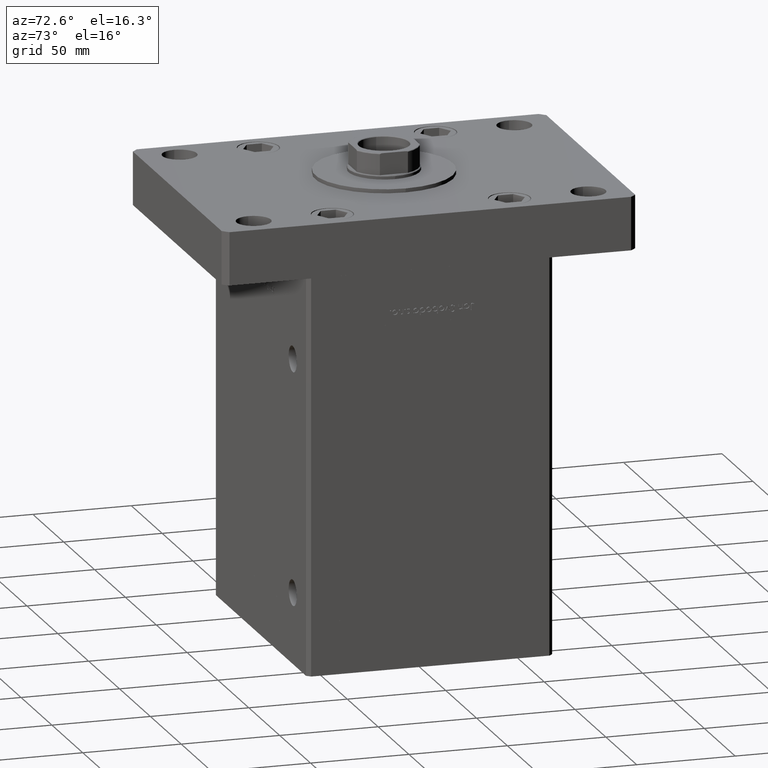
[diagram: clean part render]
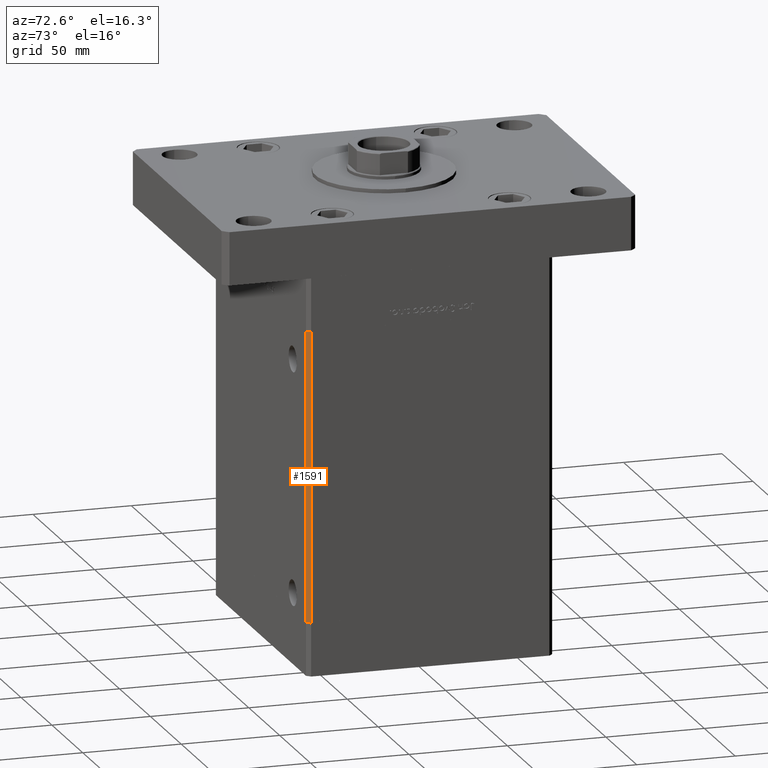
[diagram: same view with one face highlighted and labeled with its STEP entity id]
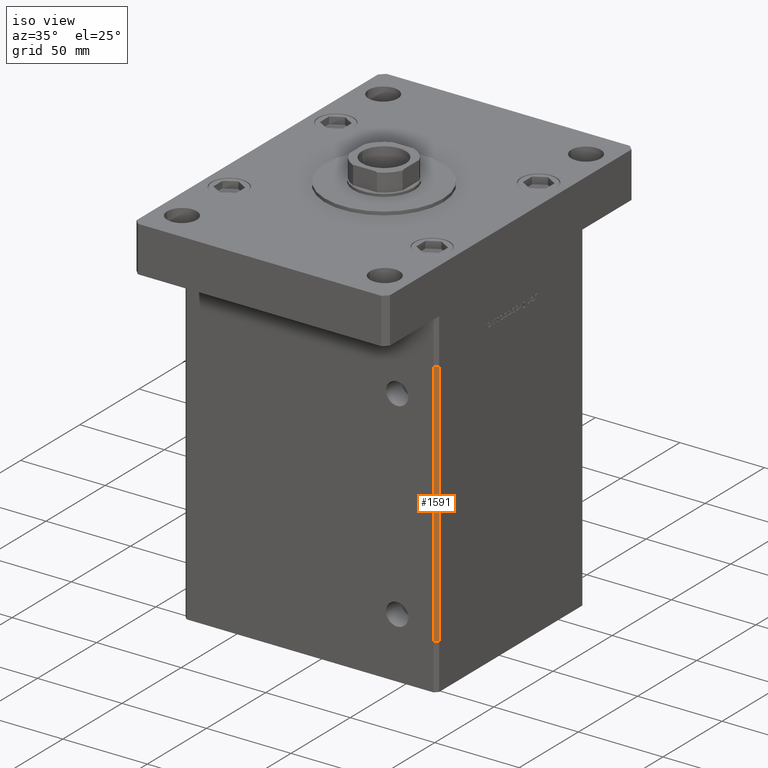
[diagram: same view with one face highlighted and labeled with its STEP entity id]
A machine part, auxiliary view. The second image highlights one B-rep face of the part: STEP entity #1591.
A second angle (iso view) of the same face is appended — the face is thin or edge-on in the first view.
In plain terms, the highlighted planar face has unit normal (0.7071, -0.7071, 0).
Its self-contained STEP definition (entity closure, byte-faithful):
#1591 = ADVANCED_FACE ( 'NONE', ( #52534 ), #11382, .T. ) ;
#2740 = DIRECTION ( 'NONE',  ( 0.7071067811865474617, 0.7071067811865474617, 0.000000000000000000 ) ) ;
#3262 = CARTESIAN_POINT ( 'NONE',  ( 74.99999999999998579, -60.50000000000000000, 147.0000000000000000 ) ) ;
#3603 = ORIENTED_EDGE ( 'NONE', *, *, #18119, .F. ) ;
#4198 = VERTEX_POINT ( 'NONE', #18834 ) ;
#4493 = VERTEX_POINT ( 'NONE', #37176 ) ;
#5754 = DIRECTION ( 'NONE',  ( -0.7071067811865474617, -0.7071067811865474617, 0.000000000000000000 ) ) ;
#5850 = LINE ( 'NONE', #22380, #31080 ) ;
#6058 = DIRECTION ( 'NONE',  ( -0.000000000000000000, -0.000000000000000000, -1.000000000000000000 ) ) ;
#6429 = EDGE_CURVE ( 'NONE', #4493, #38639, #5850, .T. ) ;
#7618 = ORIENTED_EDGE ( 'NONE', *, *, #6429, .F. ) ;
#9154 = EDGE_LOOP ( 'NONE', ( #7618, #3603, #41637, #27978 ) ) ;
#11382 = PLANE ( 'NONE',  #46669 ) ;
#11643 = DIRECTION ( 'NONE',  ( -0.000000000000000000, -0.000000000000000000, -1.000000000000000000 ) ) ;
#11894 = CARTESIAN_POINT ( 'NONE',  ( 72.99999999999998579, -62.50000000000000000, 147.0000000000000000 ) ) ;
#12878 = VERTEX_POINT ( 'NONE', #20977 ) ;
#18119 = EDGE_CURVE ( 'NONE', #4198, #4493, #26625, .T. ) ;
#18834 = CARTESIAN_POINT ( 'NONE',  ( 74.99999999999998579, -60.50000000000000000, 147.0000000000000000 ) ) ;
#20977 = CARTESIAN_POINT ( 'NONE',  ( 72.99999999999998579, -62.50000000000000000, 147.0000000000000000 ) ) ;
#21604 = VECTOR ( 'NONE', #5754, 1000.000000000000114 ) ;
#22380 = CARTESIAN_POINT ( 'NONE',  ( 74.99999999999998579, -60.50000000000000000, 0.000000000000000000 ) ) ;
#26595 = CARTESIAN_POINT ( 'NONE',  ( 74.99999999999998579, -60.50000000000000000, 147.0000000000000000 ) ) ;
#26625 = LINE ( 'NONE', #43131, #46426 ) ;
#26865 = LINE ( 'NONE', #26595, #21604 ) ;
#27100 = DIRECTION ( 'NONE',  ( 0.7071067811865475727, -0.7071067811865475727, 0.000000000000000000 ) ) ;
#27978 = ORIENTED_EDGE ( 'NONE', *, *, #53227, .T. ) ;
#29385 = EDGE_CURVE ( 'NONE', #4198, #12878, #26865, .T. ) ;
#31080 = VECTOR ( 'NONE', #50519, 1000.000000000000114 ) ;
#31748 = VECTOR ( 'NONE', #11643, 1000.000000000000000 ) ;
#35468 = LINE ( 'NONE', #11894, #31748 ) ;
#37176 = CARTESIAN_POINT ( 'NONE',  ( 74.99999999999998579, -60.50000000000000000, 0.000000000000000000 ) ) ;
#38639 = VERTEX_POINT ( 'NONE', #43653 ) ;
#41637 = ORIENTED_EDGE ( 'NONE', *, *, #29385, .T. ) ;
#43131 = CARTESIAN_POINT ( 'NONE',  ( 74.99999999999998579, -60.50000000000000000, 147.0000000000000000 ) ) ;
#43653 = CARTESIAN_POINT ( 'NONE',  ( 72.99999999999998579, -62.50000000000000000, 0.000000000000000000 ) ) ;
#46426 = VECTOR ( 'NONE', #6058, 1000.000000000000000 ) ;
#46669 = AXIS2_PLACEMENT_3D ( 'NONE', #3262, #27100, #2740 ) ;
#50519 = DIRECTION ( 'NONE',  ( -0.7071067811865474617, -0.7071067811865474617, 0.000000000000000000 ) ) ;
#52534 = FACE_OUTER_BOUND ( 'NONE', #9154, .T. ) ;
#53227 = EDGE_CURVE ( 'NONE', #12878, #38639, #35468, .T. ) ;